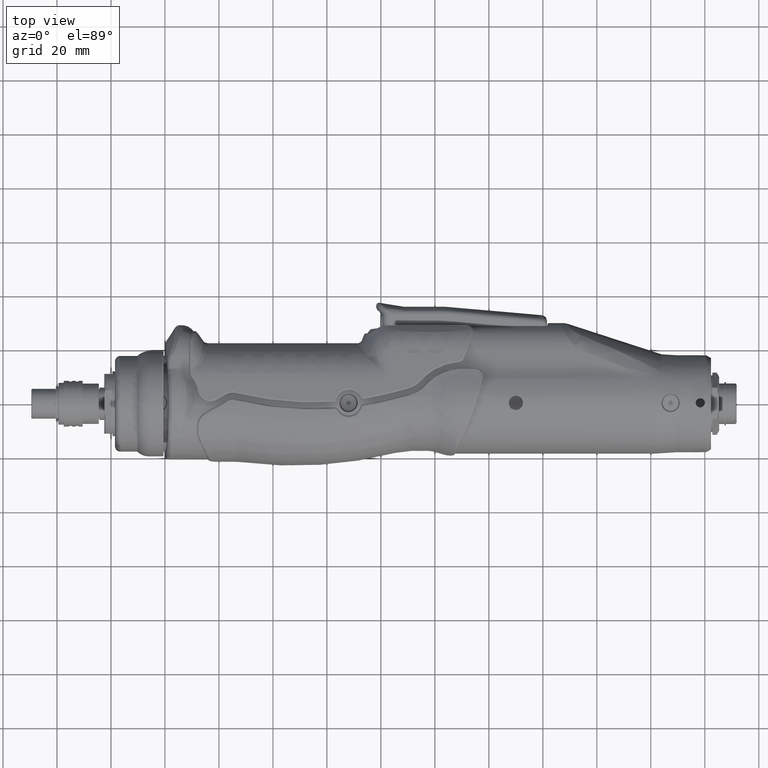
[diagram: clean part render]
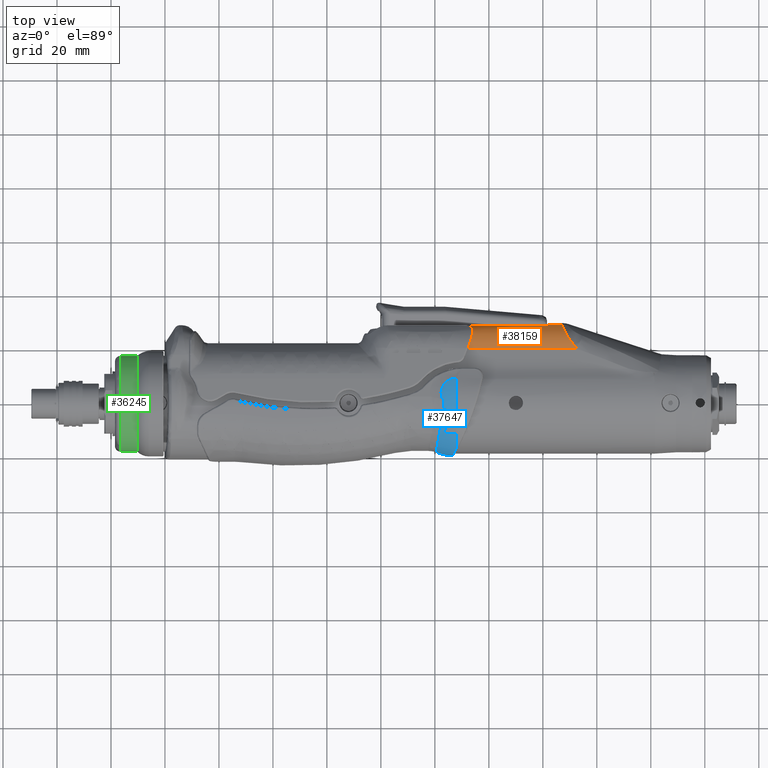
[diagram: same view with three faces highlighted in distinct colors, each labeled with its STEP entity id]
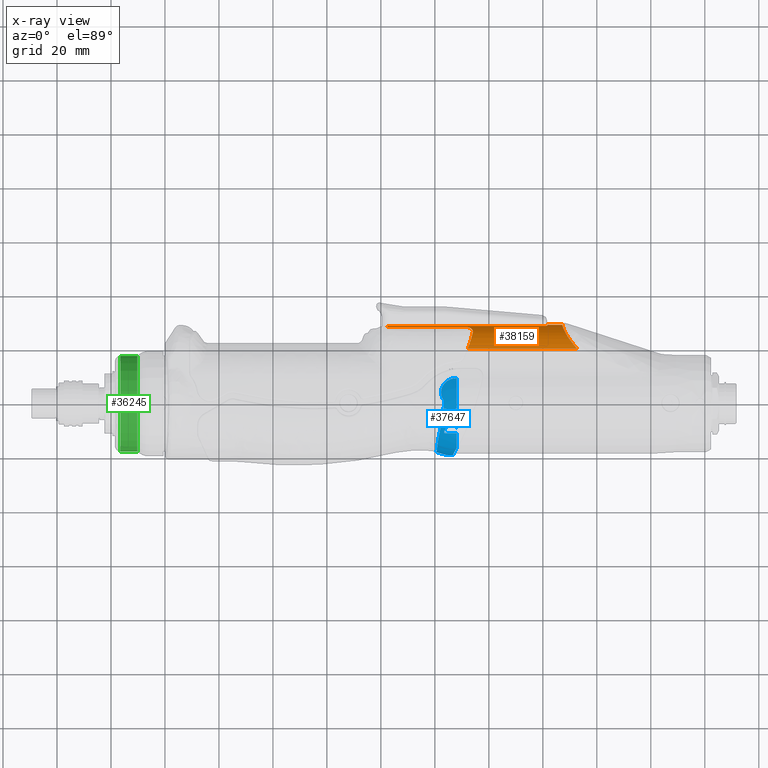
[diagram: x-ray of the same camera — body ghosted, the three highlighted faces saturated]
A machine part, top view with three faces highlighted in distinct colors.
The next image is the same camera in x-ray (body ghosted, the three faces saturated) — at least one of them is partly hidden behind the body in this view.
Their STEP definitions:

[orange] entity #38159 — the highlighted cylindrical surface (edge-blend (fillet) strip) has radius 12 mm, axis along (-1, 0, 0).
#2390=LINE('',#78017,#4304);
#2738=LINE('',#89804,#4652);
#2869=LINE('',#94908,#4783);
#2871=LINE('',#94987,#4785);
#4304=VECTOR('',#47684,10.);
#4652=VECTOR('',#49234,10.);
#4783=VECTOR('',#50011,10.);
#4785=VECTOR('',#50019,10.);
#5407=ELLIPSE('',#41374,12.0164681519751,12.);
#6155=CYLINDRICAL_SURFACE('',#41572,12.);
#8415=FACE_OUTER_BOUND('',#10816,.T.);
#10816=EDGE_LOOP('',(#34619,#34620,#34621,#34622,#34623,#34624,#34625,#34626,
#34627,#34628));
#13338=B_SPLINE_CURVE_WITH_KNOTS('',3,(#77062,#77063,#77064,#77065,#77066,
#77067),.UNSPECIFIED.,.F.,.F.,(4,2,4),(2.18533217796081,2.40095330920797,
2.83036980146357),.UNSPECIFIED.);
#13397=B_SPLINE_CURVE_WITH_KNOTS('',3,(#78019,#78020,#78021,#78022,#78023,
#78024,#78025,#78026,#78027,#78028,#78029,#78030,#78031,#78032),
 .UNSPECIFIED.,.F.,.F.,(4,2,2,2,2,2,4),(0.0135601357998733,0.0915677110501091,
0.162997854147486,0.240721532384516,0.349360966597987,0.452942930565733,
0.543218452748242),.UNSPECIFIED.);
#14075=B_SPLINE_CURVE_WITH_KNOTS('',3,(#90540,#90541,#90542,#90543,#90544,
#90545,#90546),.UNSPECIFIED.,.F.,.F.,(4,1,1,1,4),(-0.720255730009514,-0.617362054293869,
-0.514468378578224,-0.308681027146935,0.),.UNSPECIFIED.);
#14136=B_SPLINE_CURVE_WITH_KNOTS('',3,(#92085,#92086,#92087,#92088,#92089,
#92090,#92091,#92092,#92093,#92094),.UNSPECIFIED.,.F.,.F.,(4,2,2,2,4),(-0.150324423364904,
-0.115545784355836,-0.0753004141005675,-0.0376502070502838,0.),
 .UNSPECIFIED.);
#14242=B_SPLINE_CURVE_WITH_KNOTS('',3,(#94988,#94989,#94990,#94991),
 .UNSPECIFIED.,.F.,.F.,(4,4),(0.356777315490855,0.395982599052817),
 .UNSPECIFIED.);
#16606=VERTEX_POINT('',#77060);
#16607=VERTEX_POINT('',#77061);
#16737=VERTEX_POINT('',#77996);
#16742=VERTEX_POINT('',#78015);
#17494=VERTEX_POINT('',#89801);
#17495=VERTEX_POINT('',#89803);
#17544=VERTEX_POINT('',#90539);
#17661=VERTEX_POINT('',#92060);
#17666=VERTEX_POINT('',#92084);
#17827=VERTEX_POINT('',#94903);
#21578=EDGE_CURVE('',#16606,#16607,#13338,.T.);
#21731=EDGE_CURVE('',#16742,#16737,#2390,.T.);
#21732=EDGE_CURVE('',#16742,#16607,#13397,.T.);
#22952=EDGE_CURVE('',#17495,#17494,#2738,.T.);
#23027=EDGE_CURVE('',#17495,#17544,#14075,.T.);
#23206=EDGE_CURVE('',#17494,#17661,#5407,.T.);
#23213=EDGE_CURVE('',#17661,#17666,#14136,.T.);
#23514=EDGE_CURVE('',#17666,#17827,#2869,.T.);
#23519=EDGE_CURVE('',#17544,#16606,#2871,.T.);
#23520=EDGE_CURVE('',#16737,#17827,#14242,.T.);
#34619=ORIENTED_EDGE('',*,*,#21731,.F.);
#34620=ORIENTED_EDGE('',*,*,#21732,.T.);
#34621=ORIENTED_EDGE('',*,*,#21578,.F.);
#34622=ORIENTED_EDGE('',*,*,#23519,.F.);
#34623=ORIENTED_EDGE('',*,*,#23027,.F.);
#34624=ORIENTED_EDGE('',*,*,#22952,.T.);
#34625=ORIENTED_EDGE('',*,*,#23206,.T.);
#34626=ORIENTED_EDGE('',*,*,#23213,.T.);
#34627=ORIENTED_EDGE('',*,*,#23514,.T.);
#34628=ORIENTED_EDGE('',*,*,#23520,.F.);
#38159=ADVANCED_FACE('',(#8415),#6155,.T.);
#41374=AXIS2_PLACEMENT_3D('',#92062,#49559,#49560);
#41572=AXIS2_PLACEMENT_3D('',#94986,#50017,#50018);
#47684=DIRECTION('',(-1.,0.,0.));
#49234=DIRECTION('',(-1.,0.,0.));
#49559=DIRECTION('center_axis',(0.998629534754574,0.,0.0523359562429442));
#49560=DIRECTION('ref_axis',(0.0523359562429442,3.78806346706372E-15,-0.998629534754574));
#50011=DIRECTION('',(-1.,0.,0.));
#50017=DIRECTION('center_axis',(-1.,0.,0.));
#50018=DIRECTION('ref_axis',(0.,-0.953762841333783,-0.300560214417858));
#50019=DIRECTION('',(-1.,0.,0.));
#77060=CARTESIAN_POINT('',(112.222368316741,20.163754496482,13.240572280895));
#77061=CARTESIAN_POINT('',(113.970382850857,25.883831608693,10.25));
#77062=CARTESIAN_POINT('Ctrl Pts',(112.222368316741,20.163754496482,13.240572280895));
#77063=CARTESIAN_POINT('Ctrl Pts',(112.471544799699,20.8623715922217,13.0920766331006));
#77064=CARTESIAN_POINT('Ctrl Pts',(112.706926107603,21.5608266661217,12.877675071049));
#77065=CARTESIAN_POINT('Ctrl Pts',(113.352978726152,23.5851383028355,12.0442001740966));
#77066=CARTESIAN_POINT('Ctrl Pts',(113.704825576572,24.8462249751221,11.2244784154893));
#77067=CARTESIAN_POINT('Ctrl Pts',(113.970382850857,25.8838316086929,10.25));
#77996=CARTESIAN_POINT('',(82.5116341785129,28.2030300997966,7.24999999999993));
#78015=CARTESIAN_POINT('',(111.445377172893,28.2030300997965,7.24999999999999));
#78017=CARTESIAN_POINT('',(194.5,28.2030300997965,7.25000000000002));
#78019=CARTESIAN_POINT('Ctrl Pts',(111.445377172893,28.2030300997965,7.25000000000003));
#78020=CARTESIAN_POINT('Ctrl Pts',(111.704815657534,28.2030300997965,7.25000000000002));
#78021=CARTESIAN_POINT('Ctrl Pts',(111.962765652489,28.1857438617152,7.28205868743407));
#78022=CARTESIAN_POINT('Ctrl Pts',(112.439087055217,28.115745894805,7.40757348048946));
#78023=CARTESIAN_POINT('Ctrl Pts',(112.655321633039,28.06661455345,7.49468558569786));
#78024=CARTESIAN_POINT('Ctrl Pts',(113.070887083768,27.9284058781753,7.72862037079783));
#78025=CARTESIAN_POINT('Ctrl Pts',(113.262253206449,27.8377348352638,7.8772555885471));
#78026=CARTESIAN_POINT('Ctrl Pts',(113.651895521282,27.5742333792954,8.28233104191668));
#78027=CARTESIAN_POINT('Ctrl Pts',(113.813742322091,27.3890928211963,8.54817918026333));
#78028=CARTESIAN_POINT('Ctrl Pts',(114.015056165948,26.9742367786853,9.08694643357673));
#78029=CARTESIAN_POINT('Ctrl Pts',(114.057519049104,26.7522365251062,9.352120738642));
#78030=CARTESIAN_POINT('Ctrl Pts',(114.057857857457,26.3136480790085,9.8309632564277));
#78031=CARTESIAN_POINT('Ctrl Pts',(114.025901715181,26.1007593583332,10.0462701828364));
#78032=CARTESIAN_POINT('Ctrl Pts',(113.970382850857,25.883831608693,10.25));
#89801=CARTESIAN_POINT('',(141.732221212566,29.1139683026743,5.10952364510359));
#89803=CARTESIAN_POINT('',(147.211239928333,29.1139683026743,5.10952364510358));
#89804=CARTESIAN_POINT('',(194.5,29.1139683026743,5.10952364510359));
#90539=CARTESIAN_POINT('',(152.672297428724,20.163754496482,13.240572280895));
#90540=CARTESIAN_POINT('Ctrl Pts',(147.211239928333,29.1139683026743,5.10952364510357));
#90541=CARTESIAN_POINT('Ctrl Pts',(147.246081597507,28.8063106957577,6.0858085266508));
#90542=CARTESIAN_POINT('Ctrl Pts',(147.492567562962,27.9529981331913,7.87753906730324));
#90543=CARTESIAN_POINT('Ctrl Pts',(148.400751139563,25.9872433396214,10.3487685351457));
#90544=CARTESIAN_POINT('Ctrl Pts',(150.135313625103,23.1930390621408,12.3651934401598));
#90545=CARTESIAN_POINT('Ctrl Pts',(151.711687627015,21.2456834346459,13.0106011858276));
#90546=CARTESIAN_POINT('Ctrl Pts',(152.672297428724,20.163754496482,13.240572280895));
#92060=CARTESIAN_POINT('',(141.722116347521,29.0514120939748,5.30233595624294));
#92062=CARTESIAN_POINT('Origin',(141.921241533108,17.6688142066689,1.50280107208929));
#92084=CARTESIAN_POINT('',(140.723486812766,28.6898895779221,6.25));
#92085=CARTESIAN_POINT('Ctrl Pts',(141.722116347521,29.0514120939748,5.30233595624294));
#92086=CARTESIAN_POINT('Ctrl Pts',(141.716260623177,29.0141150932298,5.41406983284264));
#92087=CARTESIAN_POINT('Ctrl Pts',(141.69061927234,28.9735112608761,5.52983334691038));
#92088=CARTESIAN_POINT('Ctrl Pts',(141.592939476108,28.8882295391867,5.76218457562203));
#92089=CARTESIAN_POINT('Ctrl Pts',(141.513900620926,28.8439713605486,5.87604897038397));
#92090=CARTESIAN_POINT('Ctrl Pts',(141.334805619417,28.7740444908197,6.0505606752751));
#92091=CARTESIAN_POINT('Ctrl Pts',(141.224850817717,28.7429696148424,6.12513968871334));
#92092=CARTESIAN_POINT('Ctrl Pts',(140.981972077688,28.7008022137296,6.22489519935609));
#92093=CARTESIAN_POINT('Ctrl Pts',(140.848987502934,28.6898895779221,6.25));
#92094=CARTESIAN_POINT('Ctrl Pts',(140.723486812766,28.6898895779221,6.25));
#94903=CARTESIAN_POINT('',(82.384528459137,28.6898895779249,6.24999999999675));
#94908=CARTESIAN_POINT('',(194.5,28.6898895779221,6.25));
#94986=CARTESIAN_POINT('Origin',(194.5,17.6688142066689,1.50280107208929));
#94987=CARTESIAN_POINT('',(194.5,20.163754496482,13.240572280895));
#94988=CARTESIAN_POINT('Ctrl Pts',(82.5116341785129,28.2030300997965,7.24999999999999));
#94989=CARTESIAN_POINT('Ctrl Pts',(82.4686289628821,28.3803378345495,6.92500725469253));
#94990=CARTESIAN_POINT('Ctrl Pts',(82.4261588370576,28.542875446345,6.59127870638501));
#94991=CARTESIAN_POINT('Ctrl Pts',(82.3845467031436,28.6898994085477,6.24994304257009));

[blue] entity #37647 — the highlighted face is a freeform B-spline surface patch.
#161=(
BOUNDED_SURFACE()
B_SPLINE_SURFACE(2,2,((#82995,#82996,#82997,#82998,#82999),(#83000,#83001,
#83002,#83003,#83004),(#83005,#83006,#83007,#83008,#83009)),
 .UNSPECIFIED.,.F.,.F.,.F.)
B_SPLINE_SURFACE_WITH_KNOTS((3,3),(3,2,3),(-1.67866965191147E-15,0.360466775852574),
(-0.00742897155531735,0.96672041926039,1.9408698100761),.UNSPECIFIED.)
GEOMETRIC_REPRESENTATION_ITEM()
RATIONAL_B_SPLINE_SURFACE(((1.,0.883705805480462,1.,0.883705805480462,1.),
(0.983801882652675,0.869391435142777,0.983801882652675,0.869391435142777,
0.983801882652675),(1.,0.883705805480462,1.,0.883705805480462,1.)))
REPRESENTATION_ITEM('')
SURFACE()
);
#7903=FACE_OUTER_BOUND('',#10300,.T.);
#10300=EDGE_LOOP('',(#32099,#32100,#32101,#32102,#32103,#32104,#32105,#32106,
#32107,#32108,#32109,#32110,#32111,#32112,#32113,#32114,#32115,#32116,#32117,
#32118,#32119,#32120));
#11914=CIRCLE('',#40947,19.4999999999786);
#11915=CIRCLE('',#40948,19.4999999999786);
#11916=CIRCLE('',#40949,19.4999999999786);
#13522=B_SPLINE_CURVE_WITH_KNOTS('',3,(#81036,#81037,#81038,#81039,#81040,
#81041,#81042),.UNSPECIFIED.,.F.,.F.,(4,1,1,1,4),(6.0843489800045,6.38608112276688,
6.98954540829165,7.59300969381642,8.19647397934119),.UNSPECIFIED.);
#13663=B_SPLINE_CURVE_WITH_KNOTS('',3,(#83012,#83013,#83014,#83015,#83016,
#83017),.UNSPECIFIED.,.F.,.F.,(4,2,4),(6.84864212579494,7.00741828480986,
7.23872472536505),.UNSPECIFIED.);
#13664=B_SPLINE_CURVE_WITH_KNOTS('',3,(#83019,#83020,#83021,#83022,#83023,
#83024,#83025,#83026,#83027,#83028,#83029,#83030,#83031,#83032,#83033,#83034,
#83035,#83036,#83037,#83038,#83039,#83040,#83041,#83042,#83043,#83044,#83045,
#83046,#83047,#83048,#83049,#83050),.UNSPECIFIED.,.F.,.F.,(4,2,2,2,2,2,
2,2,2,2,2,2,2,2,2,4),(-0.175207260989441,-0.161390986196614,-0.146376941870703,
-0.130428017345468,-0.113802457034853,-0.0996346077151626,-0.0933722906864344,
-0.0919525150459862,-0.0914061847318509,-0.0910296173968525,-0.0906607119934587,
-0.0901339132443751,-0.0889219078488594,-0.0753085493294209,-0.0717370019839274,
-0.059160697027977),.UNSPECIFIED.);
#13665=B_SPLINE_CURVE_WITH_KNOTS('',3,(#83052,#83053,#83054,#83055,#83056,
#83057),.UNSPECIFIED.,.F.,.F.,(4,2,4),(3.57969675542295,3.65987207115346,
4.04082623254342),.UNSPECIFIED.);
#13666=B_SPLINE_CURVE_WITH_KNOTS('',3,(#83059,#83060,#83061,#83062,#83063,
#83064,#83065,#83066,#83067,#83068,#83069,#83070,#83071,#83072,#83073,#83074,
#83075,#83076),.UNSPECIFIED.,.F.,.F.,(4,2,2,2,2,2,2,2,4),(-0.107669296142298,
-0.0958738284427018,-0.0820783031704623,-0.068448785842059,-0.0588921607047289,
-0.0499713936850931,-0.0389951924335377,-0.0216476688496349,-3.2846728378888E-7),
 .UNSPECIFIED.);
#13667=B_SPLINE_CURVE_WITH_KNOTS('',3,(#83078,#83079,#83080,#83081,#83082,
#83083),.UNSPECIFIED.,.F.,.F.,(4,2,4),(2.00183728816286,2.24094879336905,
2.32564110053207),.UNSPECIFIED.);
#13668=B_SPLINE_CURVE_WITH_KNOTS('',3,(#83087,#83088,#83089,#83090,#83091,
#83092),.UNSPECIFIED.,.F.,.F.,(4,2,4),(8.88803760641612,8.97803856903778,
8.99356631687345),.UNSPECIFIED.);
#13669=B_SPLINE_CURVE_WITH_KNOTS('',3,(#83094,#83095,#83096,#83097,#83098,
#83099,#83100,#83101,#83102,#83103,#83104,#83105,#83106,#83107,#83108,#83109),
 .UNSPECIFIED.,.F.,.F.,(4,2,2,2,2,2,2,4),(-0.111174349250777,-0.0945264004312579,
-0.0782444576337744,-0.0581249814346646,-0.042917194126057,-0.0299802049399593,
-0.0166325525604965,-0.00558862584447598),.UNSPECIFIED.);
#13670=B_SPLINE_CURVE_WITH_KNOTS('',3,(#83111,#83112,#83113,#83114),
 .UNSPECIFIED.,.F.,.F.,(4,4),(2.94888783843519,2.96223839714455),
 .UNSPECIFIED.);
#13671=B_SPLINE_CURVE_WITH_KNOTS('',3,(#83117,#83118,#83119,#83120),
 .UNSPECIFIED.,.F.,.F.,(4,4),(-0.256394329282743,0.102826171755218),
 .UNSPECIFIED.);
#13672=B_SPLINE_CURVE_WITH_KNOTS('',3,(#83122,#83123,#83124,#83125),
 .UNSPECIFIED.,.F.,.F.,(4,4),(0.102829101297793,0.1902340104603),
 .UNSPECIFIED.);
#13673=B_SPLINE_CURVE_WITH_KNOTS('',3,(#83127,#83128,#83129,#83130),
 .UNSPECIFIED.,.F.,.F.,(4,4),(3.31468742055312,3.39915012772364),
 .UNSPECIFIED.);
#13674=B_SPLINE_CURVE_WITH_KNOTS('',3,(#83132,#83133,#83134,#83135,#83136,
#83137,#83138,#83139,#83140,#83141,#83142,#83143,#83144,#83145,#83146,#83147),
 .UNSPECIFIED.,.F.,.F.,(4,2,2,2,2,2,2,4),(-0.105916992540631,-0.0988573058367049,
-0.0846104961594201,-0.0717479752893152,-0.0575996085153176,-0.0395270415727055,
-0.0200547885819448,-8.20116413946526E-8),.UNSPECIFIED.);
#13675=B_SPLINE_CURVE_WITH_KNOTS('',3,(#83149,#83150,#83151,#83152,#83153,
#83154),.UNSPECIFIED.,.F.,.F.,(4,2,4),(7.92659907632255,8.19743054133905,
8.2772788656176),.UNSPECIFIED.);
#13676=B_SPLINE_CURVE_WITH_KNOTS('',3,(#83156,#83157,#83158,#83159),
 .UNSPECIFIED.,.F.,.F.,(4,4),(0.778665188108564,1.28715611474134),
 .UNSPECIFIED.);
#13677=B_SPLINE_CURVE_WITH_KNOTS('',3,(#83161,#83162,#83163,#83164,#83165),
 .UNSPECIFIED.,.F.,.F.,(4,1,4),(4.58809915042438E-14,1.08799674133677,2.53865906311907),
 .UNSPECIFIED.);
#13678=B_SPLINE_CURVE_WITH_KNOTS('',3,(#83167,#83168,#83169,#83170),
 .UNSPECIFIED.,.F.,.F.,(4,4),(-0.335851886930847,0.),.UNSPECIFIED.);
#13679=B_SPLINE_CURVE_WITH_KNOTS('',3,(#83172,#83173,#83174,#83175,#83176),
 .UNSPECIFIED.,.F.,.F.,(4,1,4),(0.,0.173114590967843,0.403934045591634),
 .UNSPECIFIED.);
#13680=B_SPLINE_CURVE_WITH_KNOTS('',3,(#83178,#83179,#83180,#83181),
 .UNSPECIFIED.,.F.,.F.,(4,4),(-0.588451958275798,-9.08773663852884E-16),
 .UNSPECIFIED.);
#16971=VERTEX_POINT('',#81022);
#16972=VERTEX_POINT('',#81035);
#17126=VERTEX_POINT('',#83010);
#17127=VERTEX_POINT('',#83011);
#17128=VERTEX_POINT('',#83018);
#17129=VERTEX_POINT('',#83051);
#17130=VERTEX_POINT('',#83058);
#17131=VERTEX_POINT('',#83077);
#17132=VERTEX_POINT('',#83084);
#17133=VERTEX_POINT('',#83086);
#17134=VERTEX_POINT('',#83093);
#17135=VERTEX_POINT('',#83110);
#17136=VERTEX_POINT('',#83116);
#17137=VERTEX_POINT('',#83121);
#17138=VERTEX_POINT('',#83126);
#17139=VERTEX_POINT('',#83131);
#17140=VERTEX_POINT('',#83148);
#17141=VERTEX_POINT('',#83155);
#17142=VERTEX_POINT('',#83160);
#17143=VERTEX_POINT('',#83166);
#17144=VERTEX_POINT('',#83171);
#17145=VERTEX_POINT('',#83177);
#22136=EDGE_CURVE('',#16972,#16971,#13522,.T.);
#22307=EDGE_CURVE('',#17126,#17127,#13663,.T.);
#22308=EDGE_CURVE('',#17126,#17128,#13664,.T.);
#22309=EDGE_CURVE('',#17129,#17128,#13665,.T.);
#22310=EDGE_CURVE('',#17130,#17129,#13666,.T.);
#22311=EDGE_CURVE('',#17131,#17130,#13667,.T.);
#22312=EDGE_CURVE('',#17132,#17131,#11914,.T.);
#22313=EDGE_CURVE('',#17133,#17132,#13668,.T.);
#22314=EDGE_CURVE('',#17134,#17133,#13669,.T.);
#22315=EDGE_CURVE('',#17135,#17134,#13670,.T.);
#22316=EDGE_CURVE('',#16972,#17135,#11915,.T.);
#22317=EDGE_CURVE('',#16971,#17136,#13671,.T.);
#22318=EDGE_CURVE('',#17136,#17137,#13672,.T.);
#22319=EDGE_CURVE('',#17138,#17137,#13673,.T.);
#22320=EDGE_CURVE('',#17139,#17138,#13674,.T.);
#22321=EDGE_CURVE('',#17140,#17139,#13675,.T.);
#22322=EDGE_CURVE('',#17140,#17141,#13676,.T.);
#22323=EDGE_CURVE('',#17141,#17142,#13677,.T.);
#22324=EDGE_CURVE('',#17142,#17143,#13678,.T.);
#22325=EDGE_CURVE('',#17143,#17144,#13679,.T.);
#22326=EDGE_CURVE('',#17144,#17145,#13680,.T.);
#22327=EDGE_CURVE('',#17127,#17145,#11916,.T.);
#32099=ORIENTED_EDGE('',*,*,#22307,.F.);
#32100=ORIENTED_EDGE('',*,*,#22308,.T.);
#32101=ORIENTED_EDGE('',*,*,#22309,.F.);
#32102=ORIENTED_EDGE('',*,*,#22310,.F.);
#32103=ORIENTED_EDGE('',*,*,#22311,.F.);
#32104=ORIENTED_EDGE('',*,*,#22312,.F.);
#32105=ORIENTED_EDGE('',*,*,#22313,.F.);
#32106=ORIENTED_EDGE('',*,*,#22314,.F.);
#32107=ORIENTED_EDGE('',*,*,#22315,.F.);
#32108=ORIENTED_EDGE('',*,*,#22316,.F.);
#32109=ORIENTED_EDGE('',*,*,#22136,.T.);
#32110=ORIENTED_EDGE('',*,*,#22317,.T.);
#32111=ORIENTED_EDGE('',*,*,#22318,.T.);
#32112=ORIENTED_EDGE('',*,*,#22319,.F.);
#32113=ORIENTED_EDGE('',*,*,#22320,.F.);
#32114=ORIENTED_EDGE('',*,*,#22321,.F.);
#32115=ORIENTED_EDGE('',*,*,#22322,.T.);
#32116=ORIENTED_EDGE('',*,*,#22323,.T.);
#32117=ORIENTED_EDGE('',*,*,#22324,.T.);
#32118=ORIENTED_EDGE('',*,*,#22325,.T.);
#32119=ORIENTED_EDGE('',*,*,#22326,.T.);
#32120=ORIENTED_EDGE('',*,*,#22327,.F.);
#37647=ADVANCED_FACE('',(#7903),#161,.T.);
#40947=AXIS2_PLACEMENT_3D('',#83085,#48459,#48460);
#40948=AXIS2_PLACEMENT_3D('',#83115,#48461,#48462);
#40949=AXIS2_PLACEMENT_3D('',#83182,#48463,#48464);
#48459=DIRECTION('center_axis',(1.,1.24615487182588E-16,0.));
#48460=DIRECTION('ref_axis',(0.,0.,-1.));
#48461=DIRECTION('center_axis',(1.,1.24615487182588E-16,0.));
#48462=DIRECTION('ref_axis',(0.,0.,-1.));
#48463=DIRECTION('center_axis',(1.,1.24615487182588E-16,0.));
#48464=DIRECTION('ref_axis',(0.,0.,-1.));
#81022=CARTESIAN_POINT('',(103.337912217771,0.836945467203335,18.9574940280877));
#81035=CARTESIAN_POINT('',(108.,9.19078020968657,17.198242908402));
#81036=CARTESIAN_POINT('Ctrl Pts',(108.,9.19078020968658,17.198242908402));
#81037=CARTESIAN_POINT('Ctrl Pts',(107.413298611296,9.19078020968658,17.198242908402));
#81038=CARTESIAN_POINT('Ctrl Pts',(105.653194271355,8.94035456376161,17.2493833896855));
#81039=CARTESIAN_POINT('Ctrl Pts',(103.121316764942,7.2782227594304,17.5881979098472));
#81040=CARTESIAN_POINT('Ctrl Pts',(101.897581445036,3.96370314691825,18.2800966528764));
#81041=CARTESIAN_POINT('Ctrl Pts',(102.650512809839,1.73732499108049,18.7610799774023));
#81042=CARTESIAN_POINT('Ctrl Pts',(103.337912217771,0.836945467203327,18.9574940280877));
#82995=CARTESIAN_POINT('Ctrl Pts',(108.,9.19078020968658,17.198242908402));
#82996=CARTESIAN_POINT('Ctrl Pts',(108.,0.0819642754996508,22.066014905081));
#82997=CARTESIAN_POINT('Ctrl Pts',(108.,-9.06276251087492,17.2660457450641));
#82998=CARTESIAN_POINT('Ctrl Pts',(108.,-18.2074892972495,12.4660765850471));
#82999=CARTESIAN_POINT('Ctrl Pts',(108.,-19.3750034153507,2.20436899232239));
#83000=CARTESIAN_POINT('Ctrl Pts',(104.173576237346,9.19078020968659,17.198242908402));
#83001=CARTESIAN_POINT('Ctrl Pts',(104.173576237346,0.0819642754996497,
22.066014905081));
#83002=CARTESIAN_POINT('Ctrl Pts',(104.173576237346,-9.06276251087493,17.2660457450641));
#83003=CARTESIAN_POINT('Ctrl Pts',(104.173576237346,-18.2074892972495,12.4660765850471));
#83004=CARTESIAN_POINT('Ctrl Pts',(104.173576237346,-19.3750034153507,2.20436899232239));
#83005=CARTESIAN_POINT('Ctrl Pts',(100.593067972681,8.55467361445706,16.0079287576116));
#83006=CARTESIAN_POINT('Ctrl Pts',(100.593067972681,0.0762914147599725,
20.5387955296507));
#83007=CARTESIAN_POINT('Ctrl Pts',(100.593067972681,-8.43551619743458,16.0710388662798));
#83008=CARTESIAN_POINT('Ctrl Pts',(100.593067972681,-16.9473238096291,11.6032822029089));
#83009=CARTESIAN_POINT('Ctrl Pts',(100.593067972681,-18.0340326627143,2.05180156906295));
#83010=CARTESIAN_POINT('',(103.866025403785,-11.2073829194047,15.4527531303884));
#83011=CARTESIAN_POINT('',(108.,-11.2073829194047,15.9575865373496));
#83012=CARTESIAN_POINT('Ctrl Pts',(103.866025403785,-11.2073829194047,15.4527531303884));
#83013=CARTESIAN_POINT('Ctrl Pts',(104.405655262832,-11.2073829194047,15.5865993063681));
#83014=CARTESIAN_POINT('Ctrl Pts',(104.974975496921,-11.2073829194047,15.6991261807245));
#83015=CARTESIAN_POINT('Ctrl Pts',(106.38404779276,-11.2073829194047,15.9022642377323));
#83016=CARTESIAN_POINT('Ctrl Pts',(107.228978531483,-11.2073829194047,15.9575865373496));
#83017=CARTESIAN_POINT('Ctrl Pts',(108.,-11.2073829194047,15.9575865373496));
#83018=CARTESIAN_POINT('',(103.433012701892,-10.4573829194047,15.8601269401137));
#83019=CARTESIAN_POINT('Ctrl Pts',(103.866025403785,-11.2073829194047,15.4527531303884));
#83020=CARTESIAN_POINT('Ctrl Pts',(103.821151146856,-11.2073829194047,15.4416228202524));
#83021=CARTESIAN_POINT('Ctrl Pts',(103.775840784963,-11.2013426340063,15.4345743158247));
#83022=CARTESIAN_POINT('Ctrl Pts',(103.683104143983,-11.1754155037868,15.4295924608533));
#83023=CARTESIAN_POINT('Ctrl Pts',(103.637425055069,-11.1548158579085,15.4325901435854));
#83024=CARTESIAN_POINT('Ctrl Pts',(103.551470813931,-11.0995881343296,15.4496660656157));
#83025=CARTESIAN_POINT('Ctrl Pts',(103.51309451818,-11.0650718807671,15.4641346402282));
#83026=CARTESIAN_POINT('Ctrl Pts',(103.447881326912,-10.9864418711518,15.5024921453242));
#83027=CARTESIAN_POINT('Ctrl Pts',(103.422097538402,-10.9426033110854,15.5264448191282));
#83028=CARTESIAN_POINT('Ctrl Pts',(103.387631993326,-10.8586543437947,15.5758234532483));
#83029=CARTESIAN_POINT('Ctrl Pts',(103.37700753618,-10.8190173928929,15.6004678415173));
#83030=CARTESIAN_POINT('Ctrl Pts',(103.368694726399,-10.7619258858952,15.6375692179509));
#83031=CARTESIAN_POINT('Ctrl Pts',(103.367094553876,-10.7444248853767,15.6491602167846));
#83032=CARTESIAN_POINT('Ctrl Pts',(103.366255260598,-10.7230492832155,15.663571382577));
#83033=CARTESIAN_POINT('Ctrl Pts',(103.366147217302,-10.719102358603,15.6662430417109));
#83034=CARTESIAN_POINT('Ctrl Pts',(103.366062290112,-10.713642869057,15.6699532253537));
#83035=CARTESIAN_POINT('Ctrl Pts',(103.366045608043,-10.7121264709646,15.6709853166754));
#83036=CARTESIAN_POINT('Ctrl Pts',(103.366029078397,-10.7095660554356,15.6727306327571));
#83037=CARTESIAN_POINT('Ctrl Pts',(103.366025610508,-10.7085216672727,15.6734432878612));
#83038=CARTESIAN_POINT('Ctrl Pts',(103.366025219023,-10.7064548270243,15.6748551000062));
#83039=CARTESIAN_POINT('Ctrl Pts',(103.366028163706,-10.7054323591384,15.6755542379127));
#83040=CARTESIAN_POINT('Ctrl Pts',(103.36604291869,-10.7029506406644,15.6772529026375));
#83041=CARTESIAN_POINT('Ctrl Pts',(103.366057984115,-10.701491744511,15.6782529266327));
#83042=CARTESIAN_POINT('Ctrl Pts',(103.366128735336,-10.6966788168172,15.6815568040873));
#83043=CARTESIAN_POINT('Ctrl Pts',(103.366211768726,-10.6933279254134,15.6838647201096));
#83044=CARTESIAN_POINT('Ctrl Pts',(103.367637282501,-10.6523932173995,15.7121515926998));
#83045=CARTESIAN_POINT('Ctrl Pts',(103.373173791021,-10.6153167349289,15.7387338466061));
#83046=CARTESIAN_POINT('Ctrl Pts',(103.385170488938,-10.5700022032936,15.7723985902338));
#83047=CARTESIAN_POINT('Ctrl Pts',(103.387937733672,-10.560662178046,15.7794037150834));
#83048=CARTESIAN_POINT('Ctrl Pts',(103.401669565926,-10.5188383553898,15.8110738071586));
#83049=CARTESIAN_POINT('Ctrl Pts',(103.415733477801,-10.4873114134464,15.8357820664495));
#83050=CARTESIAN_POINT('Ctrl Pts',(103.433012701892,-10.4573829194047,15.8601269401137));
#83051=CARTESIAN_POINT('',(105.566987298108,-6.76123049669797,18.1394725645607));
#83052=CARTESIAN_POINT('Ctrl Pts',(105.566987298108,-6.76123049669798,18.1394725645607));
#83053=CARTESIAN_POINT('Ctrl Pts',(105.438392087459,-6.98396393515174,18.0404439821536));
#83054=CARTESIAN_POINT('Ctrl Pts',(105.312560717143,-7.2019102617244,17.9373490139234));
#83055=CARTESIAN_POINT('Ctrl Pts',(104.607343843683,-8.42338171691202,17.3263271669888));
#83056=CARTESIAN_POINT('Ctrl Pts',(103.998335046385,-9.47821589608974,16.6566153115467));
#83057=CARTESIAN_POINT('Ctrl Pts',(103.433012701892,-10.4573829194047,15.8601269401137));
#83058=CARTESIAN_POINT('',(106.433012701892,-6.76123049669792,18.227889264127));
#83059=CARTESIAN_POINT('Ctrl Pts',(106.433012701893,-6.76123049669843,18.2278892641269));
#83060=CARTESIAN_POINT('Ctrl Pts',(106.414113349764,-6.7284958585807,18.2385231153708));
#83061=CARTESIAN_POINT('Ctrl Pts',(106.391409587393,-6.69774284220196,18.247993506139));
#83062=CARTESIAN_POINT('Ctrl Pts',(106.33447312803,-6.63686880768568,18.2654999040718));
#83063=CARTESIAN_POINT('Ctrl Pts',(106.29926156767,-6.60808902331521,18.2729196719422));
#83064=CARTESIAN_POINT('Ctrl Pts',(106.221843632664,-6.5608793389142,18.2830857258643));
#83065=CARTESIAN_POINT('Ctrl Pts',(106.180253983595,-6.54265374672597,18.2858170273997));
#83066=CARTESIAN_POINT('Ctrl Pts',(106.106059766039,-6.52157553917385,18.2863261501779));
#83067=CARTESIAN_POINT('Ctrl Pts',(106.074755246751,-6.51583397665768,18.2853381753789));
#83068=CARTESIAN_POINT('Ctrl Pts',(106.013657645693,-6.51054086871105,18.2811536290557));
#83069=CARTESIAN_POINT('Ctrl Pts',(105.984091677467,-6.51061904461788,18.2781213859716));
#83070=CARTESIAN_POINT('Ctrl Pts',(105.918765656668,-6.5165484146918,18.2692216219985));
#83071=CARTESIAN_POINT('Ctrl Pts',(105.883422186636,-6.52369986944479,18.2628994928818));
#83072=CARTESIAN_POINT('Ctrl Pts',(105.795511054509,-6.55147751150334,18.2433434609357));
#83073=CARTESIAN_POINT('Ctrl Pts',(105.745590303822,-6.57727340756777,18.2283949918851));
#83074=CARTESIAN_POINT('Ctrl Pts',(105.646139823192,-6.65133954292602,18.1898601191121));
#83075=CARTESIAN_POINT('Ctrl Pts',(105.600656838593,-6.70291314191047,18.1654007997392));
#83076=CARTESIAN_POINT('Ctrl Pts',(105.566987298108,-6.76123049669824,18.1394725645606));
#83077=CARTESIAN_POINT('',(108.,-9.47533211183553,17.0431241669356));
#83078=CARTESIAN_POINT('Ctrl Pts',(108.,-9.47533211183553,17.0431241669356));
#83079=CARTESIAN_POINT('Ctrl Pts',(107.614264031534,-8.80721781614555,17.4145704333783));
#83080=CARTESIAN_POINT('Ctrl Pts',(107.223265531526,-8.12998854844889,17.7261976466061));
#83081=CARTESIAN_POINT('Ctrl Pts',(106.710817019275,-7.2424016889673,18.0646854098825));
#83082=CARTESIAN_POINT('Ctrl Pts',(106.573340929931,-7.00428611739749,18.1489326156609));
#83083=CARTESIAN_POINT('Ctrl Pts',(106.433012701892,-6.76123049669793,18.227889264127));
#83084=CARTESIAN_POINT('',(108.,-3.93943372697364,19.0979282098857));
#83085=CARTESIAN_POINT('Origin',(108.,1.31573595982196E-14,0.));
#83086=CARTESIAN_POINT('',(107.433012701892,-2.95738291940483,19.2666909023934));
#83087=CARTESIAN_POINT('Ctrl Pts',(107.433012701892,-2.95738291940483,19.2666909023934));
#83088=CARTESIAN_POINT('Ctrl Pts',(107.594435192442,-3.23697487452076,19.2281852854732));
#83089=CARTESIAN_POINT('Ctrl Pts',(107.755969848445,-3.51676110590186,19.1815461831318));
#83090=CARTESIAN_POINT('Ctrl Pts',(107.944563986375,-3.84341573480651,19.1174897926878));
#83091=CARTESIAN_POINT('Ctrl Pts',(107.972294062026,-3.8914456347319,19.1078269751859));
#83092=CARTESIAN_POINT('Ctrl Pts',(108.,-3.93943372697364,19.0979282098857));
#83093=CARTESIAN_POINT('',(107.866025403785,-2.20738291940478,19.3742301408875));
#83094=CARTESIAN_POINT('Ctrl Pts',(107.8660254054,-2.20738291940477,19.3742301408979));
#83095=CARTESIAN_POINT('Ctrl Pts',(107.810545632635,-2.20738291922552,19.3738738971241));
#83096=CARTESIAN_POINT('Ctrl Pts',(107.755487055143,-2.2166165583094,19.3722476068152));
#83097=CARTESIAN_POINT('Ctrl Pts',(107.651865795712,-2.2523307350404,19.3666523515947));
#83098=CARTESIAN_POINT('Ctrl Pts',(107.603911390447,-2.27817692114907,19.3627747157045));
#83099=CARTESIAN_POINT('Ctrl Pts',(107.508146358914,-2.35187820502972,19.3519592745273));
#83100=CARTESIAN_POINT('Ctrl Pts',(107.464009994939,-2.40272982003505,19.3446258397267));
#83101=CARTESIAN_POINT('Ctrl Pts',(107.406332552109,-2.50437187299307,19.3301160319165));
#83102=CARTESIAN_POINT('Ctrl Pts',(107.388271032218,-2.5515848904351,19.3234184181422));
#83103=CARTESIAN_POINT('Ctrl Pts',(107.368430294809,-2.64238777143628,19.3105996410919));
#83104=CARTESIAN_POINT('Ctrl Pts',(107.364698668818,-2.68511739825073,19.3045909638187));
#83105=CARTESIAN_POINT('Ctrl Pts',(107.368240974615,-2.77182331325742,19.292443359079));
#83106=CARTESIAN_POINT('Ctrl Pts',(107.375853665896,-2.81544477669912,19.2863555695428));
#83107=CARTESIAN_POINT('Ctrl Pts',(107.400057750766,-2.89233202604477,19.275672392045));
#83108=CARTESIAN_POINT('Ctrl Pts',(107.414788385458,-2.92581747740829,19.2710381190969));
#83109=CARTESIAN_POINT('Ctrl Pts',(107.433012701892,-2.95738291940484,19.2666909023934));
#83110=CARTESIAN_POINT('',(108.,-2.20738291940478,19.3746602717644));
#83111=CARTESIAN_POINT('Ctrl Pts',(108.,-2.20738291940478,19.3746602717644));
#83112=CARTESIAN_POINT('Ctrl Pts',(107.955498137636,-2.20738291940478,19.3746602717644));
#83113=CARTESIAN_POINT('Ctrl Pts',(107.910837510156,-2.20738291940478,19.3745178860277));
#83114=CARTESIAN_POINT('Ctrl Pts',(107.866025403785,-2.20738291940478,19.3742301408875));
#83115=CARTESIAN_POINT('Origin',(108.,1.31573595982196E-14,0.));
#83116=CARTESIAN_POINT('',(103.272784011351,-1.61496090160074,18.8921217367649));
#83117=CARTESIAN_POINT('Ctrl Pts',(103.337912217771,0.836945467203331,18.9574940280877));
#83118=CARTESIAN_POINT('Ctrl Pts',(103.342215248456,0.0190756261653182,
18.9945824719882));
#83119=CARTESIAN_POINT('Ctrl Pts',(103.319860773145,-0.801472468454743,
18.9725129754665));
#83120=CARTESIAN_POINT('Ctrl Pts',(103.272726141184,-1.6149539827759,18.8920856713123));
#83121=CARTESIAN_POINT('',(103.233945358817,-2.20738291940462,18.8230218897373));
#83122=CARTESIAN_POINT('Ctrl Pts',(103.272724987991,-1.61497388527497,18.8920837035799));
#83123=CARTESIAN_POINT('Ctrl Pts',(103.261256172764,-1.81290876812502,18.8725140398506));
#83124=CARTESIAN_POINT('Ctrl Pts',(103.248320279545,-2.01042527801729,18.8494893738075));
#83125=CARTESIAN_POINT('Ctrl Pts',(103.233944352229,-2.20738303710561,18.8230212316519));
#83126=CARTESIAN_POINT('',(104.133974596216,-2.20738291940477,19.0133661575251));
#83127=CARTESIAN_POINT('Ctrl Pts',(104.133974596216,-2.20738291940477,19.0133661575251));
#83128=CARTESIAN_POINT('Ctrl Pts',(103.831879802201,-2.20738291940477,18.9564044577249));
#83129=CARTESIAN_POINT('Ctrl Pts',(103.531287198515,-2.20738291940478,18.8927880746665));
#83130=CARTESIAN_POINT('Ctrl Pts',(103.233945358817,-2.20738291940478,18.8230218897373));
#83131=CARTESIAN_POINT('',(104.566987298108,-2.95738291940483,18.9885712402754));
#83132=CARTESIAN_POINT('Ctrl Pts',(104.566987298108,-2.95738291940483,18.9885712402754));
#83133=CARTESIAN_POINT('Ctrl Pts',(104.57845987656,-2.93751183063275,18.9935900651302));
#83134=CARTESIAN_POINT('Ctrl Pts',(104.588577475808,-2.91682889499045,18.9984652774394));
#83135=CARTESIAN_POINT('Ctrl Pts',(104.614748723895,-2.85236691848817,19.0126342766618));
#83136=CARTESIAN_POINT('Ctrl Pts',(104.626211713734,-2.80687376854716,19.0212936088811));
#83137=CARTESIAN_POINT('Ctrl Pts',(104.635644448083,-2.71820828325513,19.0357042947044));
#83138=CARTESIAN_POINT('Ctrl Pts',(104.634777223389,-2.67560348612862,19.0415972183075));
#83139=CARTESIAN_POINT('Ctrl Pts',(104.621562052509,-2.58716510437436,19.0516553315138));
#83140=CARTESIAN_POINT('Ctrl Pts',(104.608147717226,-2.54192774752006,19.0555326888446));
#83141=CARTESIAN_POINT('Ctrl Pts',(104.563501488464,-2.44447291192312,19.0608989573876));
#83142=CARTESIAN_POINT('Ctrl Pts',(104.528795985067,-2.39475587515158,19.0613744718842));
#83143=CARTESIAN_POINT('Ctrl Pts',(104.44005747241,-2.30673938222036,19.0570626855211));
#83144=CARTESIAN_POINT('Ctrl Pts',(104.385751151896,-2.27062410794842,19.0519155651991));
#83145=CARTESIAN_POINT('Ctrl Pts',(104.265047440718,-2.22032895246234,19.0362517047177));
#83146=CARTESIAN_POINT('Ctrl Pts',(104.199666095506,-2.20738291940477,19.0257526651251));
#83147=CARTESIAN_POINT('Ctrl Pts',(104.133974596216,-2.20738291940477,19.0133661575251));
#83148=CARTESIAN_POINT('',(102.769825415292,-6.07015860982915,17.8334975476343));
#83149=CARTESIAN_POINT('Ctrl Pts',(102.769825415309,-6.07015860983953,17.8334975476364));
#83150=CARTESIAN_POINT('Ctrl Pts',(103.205102070304,-5.31623732803884,18.2083590414183));
#83151=CARTESIAN_POINT('Ctrl Pts',(103.670403474775,-4.51031165466246,18.5327588528058));
#83152=CARTESIAN_POINT('Ctrl Pts',(104.285137951067,-3.44556030855948,18.8587880310652));
#83153=CARTESIAN_POINT('Ctrl Pts',(104.425935593219,-3.20169163876752,18.9268663841875));
#83154=CARTESIAN_POINT('Ctrl Pts',(104.566987298108,-2.95738291940483,18.9885712402754));
#83155=CARTESIAN_POINT('',(102.153664934452,-9.11990683357683,16.2907427787605));
#83156=CARTESIAN_POINT('Ctrl Pts',(102.769825415275,-6.07015860982537,17.8334975476321));
#83157=CARTESIAN_POINT('Ctrl Pts',(102.592210478919,-7.13927416391195,17.4213436722738));
#83158=CARTESIAN_POINT('Ctrl Pts',(102.382406602421,-8.16194691592576,16.9030139647393));
#83159=CARTESIAN_POINT('Ctrl Pts',(102.153664934452,-9.11990683357684,16.2907427787605));
#83160=CARTESIAN_POINT('',(100.593067972681,-18.0205492656758,2.16703205375683));
#83161=CARTESIAN_POINT('Ctrl Pts',(102.153664934452,-9.11990683357643,16.2907427787608));
#83162=CARTESIAN_POINT('Ctrl Pts',(101.664235966651,-11.1696135523129,14.9806917625695));
#83163=CARTESIAN_POINT('Ctrl Pts',(100.906003727922,-15.451110267956,11.0005472520838));
#83164=CARTESIAN_POINT('Ctrl Pts',(100.640955340939,-17.6441462344601,5.44829969262524));
#83165=CARTESIAN_POINT('Ctrl Pts',(100.593067972681,-18.0205492656758,2.16703205375684));
#83166=CARTESIAN_POINT('',(103.911930233759,-18.9749323868226,2.16677002425505));
#83167=CARTESIAN_POINT('Ctrl Pts',(100.593067972681,-18.0205492656757,2.16703205375755));
#83168=CARTESIAN_POINT('Ctrl Pts',(101.670468000723,-18.4295999908195,2.16691391084567));
#83169=CARTESIAN_POINT('Ctrl Pts',(102.781823907252,-18.7491793758046,2.1668289425325));
#83170=CARTESIAN_POINT('Ctrl Pts',(103.911930233759,-18.9749323868226,2.16677002425508));
#83171=CARTESIAN_POINT('',(106.791887998594,-18.9033993541114,4.64287595395236));
#83172=CARTESIAN_POINT('Ctrl Pts',(103.911930233759,-18.9749323868226,2.16677002425505));
#83173=CARTESIAN_POINT('Ctrl Pts',(104.494442650917,-19.091296598795,2.16673965487529));
#83174=CARTESIAN_POINT('Ctrl Pts',(105.865512259001,-19.2526045734489,2.62011866881354));
#83175=CARTESIAN_POINT('Ctrl Pts',(106.690627963742,-19.0855185299601,3.87691700751409));
#83176=CARTESIAN_POINT('Ctrl Pts',(106.791887998593,-18.9033993541116,4.64287595395182));
#83177=CARTESIAN_POINT('',(108.,-16.6658384347566,10.1242199336914));
#83178=CARTESIAN_POINT('Ctrl Pts',(106.791887998594,-18.9033993541114,4.64287595395235));
#83179=CARTESIAN_POINT('Ctrl Pts',(107.050040700238,-18.4391040639145,6.59561448166777));
#83180=CARTESIAN_POINT('Ctrl Pts',(107.468767473448,-17.6795485764907,8.45551562338758));
#83181=CARTESIAN_POINT('Ctrl Pts',(108.,-16.6658384347566,10.1242199336914));
#83182=CARTESIAN_POINT('Origin',(108.,1.31573595982196E-14,0.));

[green] entity #36245 — the highlighted cylindrical surface (bore or boss wall) has radius 17.75 mm, axis along (1, 0, 0).
#1286=LINE('',#55462,#3200);
#3200=VECTOR('',#42770,17.75);
#5529=CYLINDRICAL_SURFACE('',#38739,17.75);
#6501=FACE_OUTER_BOUND('',#8794,.T.);
#8794=EDGE_LOOP('',(#24847,#24848,#24849,#24850,#24851,#24852));
#11171=CIRCLE('',#38733,17.75);
#11172=CIRCLE('',#38734,17.75);
#11176=CIRCLE('',#38740,17.75);
#11177=CIRCLE('',#38741,17.75);
#14637=VERTEX_POINT('',#55450);
#14638=VERTEX_POINT('',#55451);
#14639=VERTEX_POINT('',#55459);
#14640=VERTEX_POINT('',#55460);
#18502=EDGE_CURVE('',#14637,#14638,#11171,.T.);
#18503=EDGE_CURVE('',#14638,#14637,#11172,.T.);
#18507=EDGE_CURVE('',#14639,#14640,#11176,.T.);
#18508=EDGE_CURVE('',#14639,#14638,#1286,.T.);
#18509=EDGE_CURVE('',#14640,#14639,#11177,.T.);
#24847=ORIENTED_EDGE('',*,*,#18507,.F.);
#24848=ORIENTED_EDGE('',*,*,#18508,.T.);
#24849=ORIENTED_EDGE('',*,*,#18502,.F.);
#24850=ORIENTED_EDGE('',*,*,#18503,.F.);
#24851=ORIENTED_EDGE('',*,*,#18508,.F.);
#24852=ORIENTED_EDGE('',*,*,#18509,.F.);
#36245=ADVANCED_FACE('',(#6501),#5529,.T.);
#38733=AXIS2_PLACEMENT_3D('',#55452,#42754,#42755);
#38734=AXIS2_PLACEMENT_3D('',#55453,#42756,#42757);
#38739=AXIS2_PLACEMENT_3D('',#55458,#42766,#42767);
#38740=AXIS2_PLACEMENT_3D('',#55461,#42768,#42769);
#38741=AXIS2_PLACEMENT_3D('',#55463,#42771,#42772);
#42754=DIRECTION('center_axis',(-1.,0.,-2.46519032881566E-32));
#42755=DIRECTION('ref_axis',(-4.52848116820967E-48,-1.,1.83697019872103E-16));
#42756=DIRECTION('center_axis',(-1.,0.,-2.46519032881566E-32));
#42757=DIRECTION('ref_axis',(-4.52848116820967E-48,-1.,1.83697019872103E-16));
#42766=DIRECTION('center_axis',(1.,0.,2.46519032881566E-32));
#42767=DIRECTION('ref_axis',(-3.28151105288487E-80,1.,1.33113902587043E-48));
#42768=DIRECTION('center_axis',(1.,0.,2.46519032881566E-32));
#42769=DIRECTION('ref_axis',(2.46519032881566E-32,1.33113902587043E-48,
-1.));
#42770=DIRECTION('',(-1.,0.,-2.46519032881566E-32));
#42771=DIRECTION('center_axis',(1.,0.,2.46519032881566E-32));
#42772=DIRECTION('ref_axis',(2.46519032881566E-32,1.33113902587043E-48,
-1.));
#55450=CARTESIAN_POINT('',(-16.5,-4.25852133532935E-17,17.75));
#55451=CARTESIAN_POINT('',(-16.5,-17.75,-2.17374806848655E-15));
#55452=CARTESIAN_POINT('Origin',(-16.5,2.13116285513326E-15,1.02226189434303E-30));
#55453=CARTESIAN_POINT('Origin',(-16.5,2.13116285513326E-15,1.02226189434303E-30));
#55458=CARTESIAN_POINT('Origin',(-14.3676342932622,2.13116285513326E-15,
1.07482876752052E-30));
#55459=CARTESIAN_POINT('',(-10.2352685865244,-17.75,-2.17374806848655E-15));
#55460=CARTESIAN_POINT('',(-10.2352685865244,-4.25852133532935E-17,17.75));
#55461=CARTESIAN_POINT('Origin',(-10.2352685865244,2.13116285513326E-15,
1.17669944727431E-30));
#55462=CARTESIAN_POINT('',(-14.3676342932622,-17.75,-2.17374806848655E-15));
#55463=CARTESIAN_POINT('Origin',(-10.2352685865244,2.13116285513326E-15,
1.17669944727431E-30));